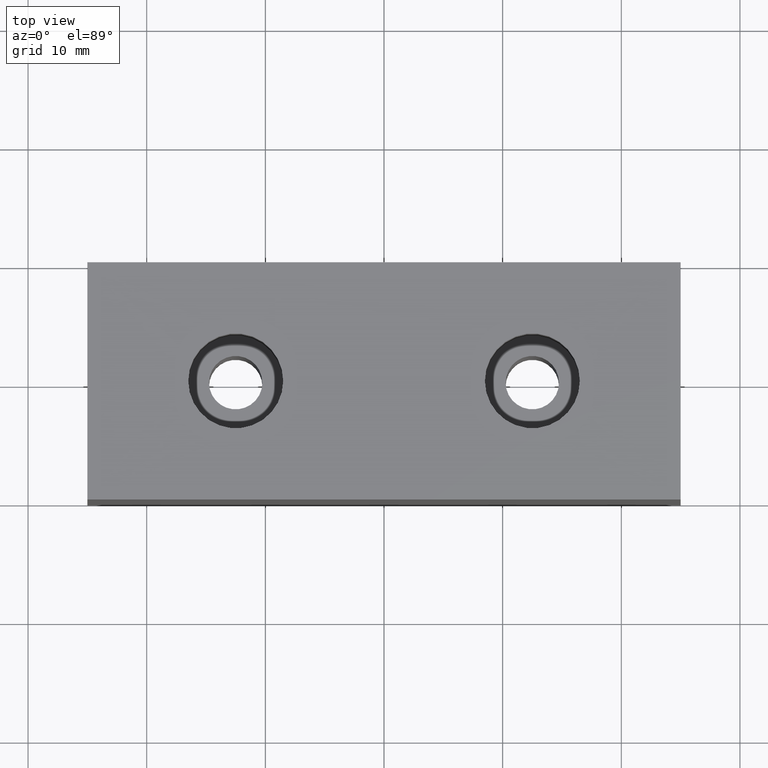
[diagram: clean part render]
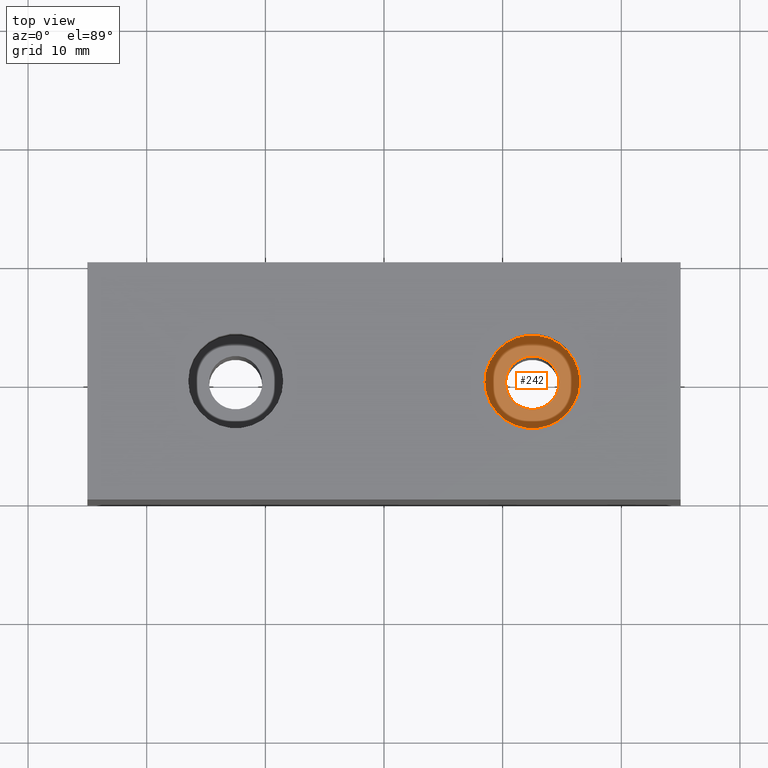
[diagram: same view with one face highlighted and labeled with its STEP entity id]
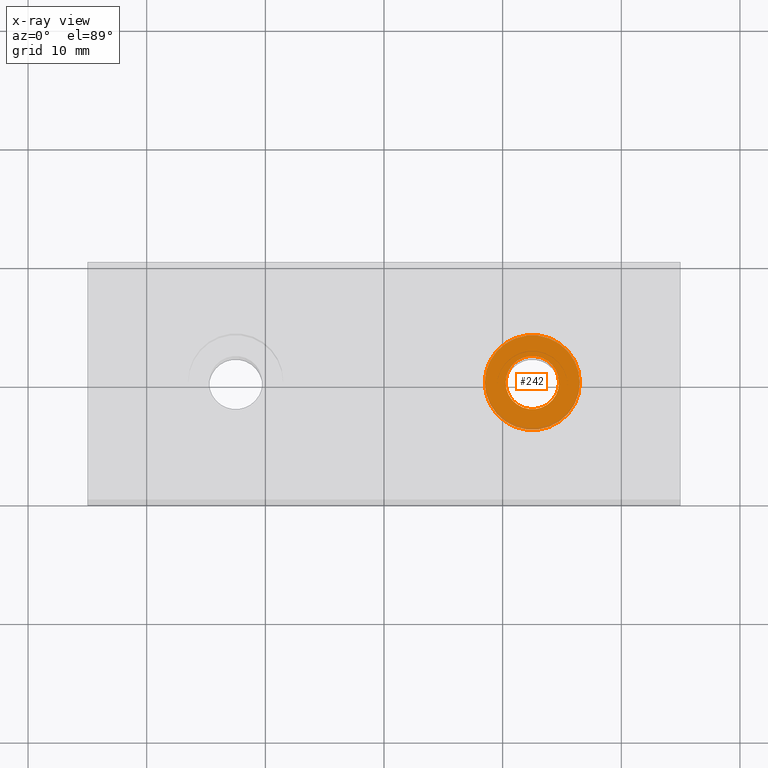
[diagram: x-ray of the same camera — body ghosted, the highlighted face saturated]
A machine part, top view. The second image highlights one B-rep face of the part: STEP entity #242.
The next image is the same camera in x-ray: the body ghosted, the highlighted face saturated — about 3% of this face is hidden behind the body in this view.
In plain terms, the highlighted planar face has unit normal (0, 0, 1).
Its self-contained STEP definition (entity closure, byte-faithful):
#17=FACE_BOUND('',#57,.T.);
#25=PLANE('',#289);
#38=FACE_OUTER_BOUND('',#56,.T.);
#56=EDGE_LOOP('',(#187));
#57=EDGE_LOOP('',(#188));
#116=CIRCLE('',#288,4.);
#117=CIRCLE('',#290,2.25);
#128=VERTEX_POINT('',#402);
#129=VERTEX_POINT('',#406);
#151=EDGE_CURVE('',#128,#128,#116,.T.);
#152=EDGE_CURVE('',#129,#129,#117,.T.);
#187=ORIENTED_EDGE('',*,*,#151,.T.);
#188=ORIENTED_EDGE('',*,*,#152,.F.);
#242=ADVANCED_FACE('',(#38,#17),#25,.T.);
#288=AXIS2_PLACEMENT_3D('',#404,#333,#334);
#289=AXIS2_PLACEMENT_3D('',#405,#335,#336);
#290=AXIS2_PLACEMENT_3D('',#407,#337,#338);
#333=DIRECTION('center_axis',(0.,0.,1.));
#334=DIRECTION('ref_axis',(1.,0.,0.));
#335=DIRECTION('center_axis',(0.,0.,1.));
#336=DIRECTION('ref_axis',(1.,0.,0.));
#337=DIRECTION('center_axis',(0.,0.,1.));
#338=DIRECTION('ref_axis',(1.,0.,0.));
#402=CARTESIAN_POINT('',(8.5,9.02981547828079E-15,21.5));
#404=CARTESIAN_POINT('Origin',(12.5,9.51967419793973E-15,21.5));
#405=CARTESIAN_POINT('Origin',(12.5,9.51967419793973E-15,21.5));
#406=CARTESIAN_POINT('',(10.25,9.24412866813157E-15,21.5));
#407=CARTESIAN_POINT('Origin',(12.5,9.51967419793973E-15,21.5));